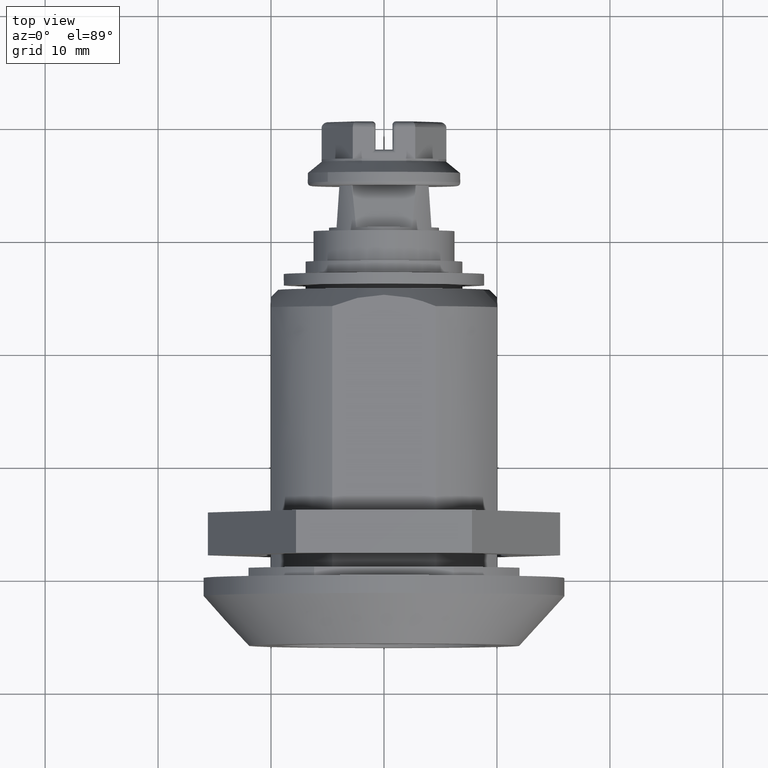
[diagram: clean part render]
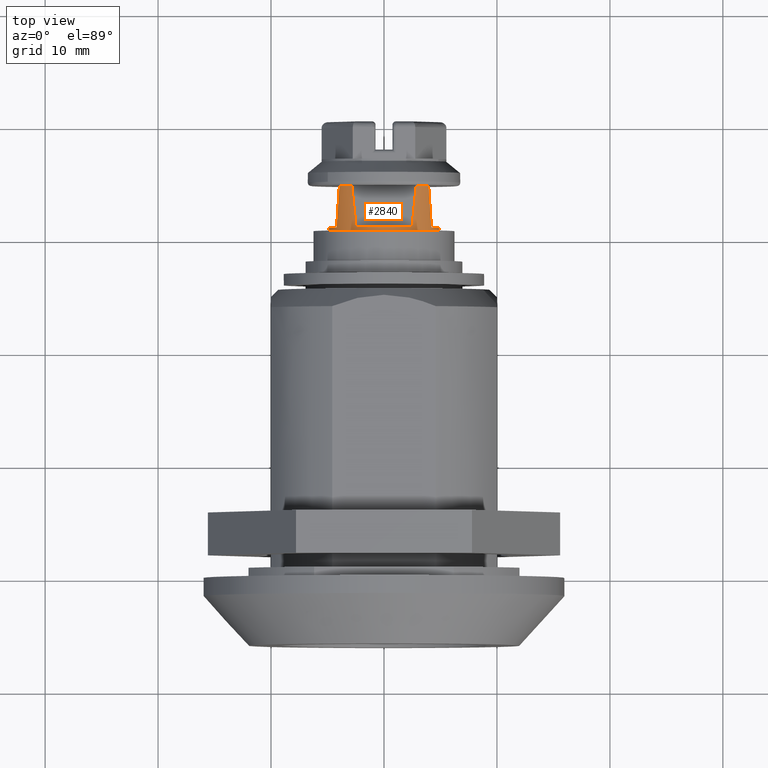
[diagram: same view with one face highlighted and labeled with its STEP entity id]
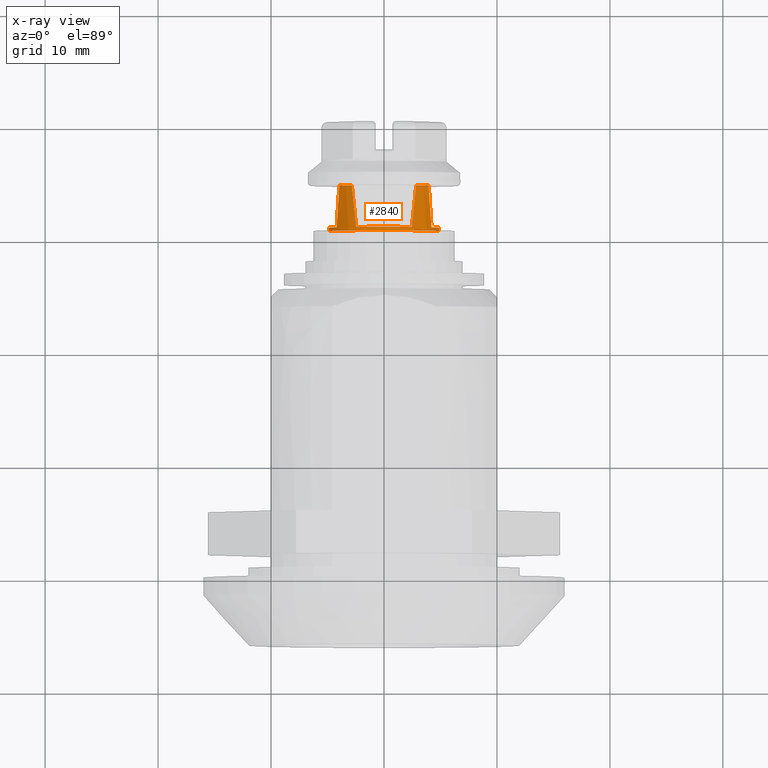
[diagram: x-ray of the same camera — body ghosted, the highlighted face saturated]
A machine part, top view. The second image highlights one B-rep face of the part: STEP entity #2840.
The next image is the same camera in x-ray: the body ghosted, the highlighted face saturated — about 0% of this face is hidden behind the body in this view.
In plain terms, the highlighted face is a freeform B-spline surface patch.
Its self-contained STEP definition (entity closure, byte-faithful):
#2448=CARTESIAN_POINT('',(4.873276285907901,30.699999999999999,-0.042519608505355));
#2449=VERTEX_POINT('',#2448);
#2463=CARTESIAN_POINT('',(1.879771E-015,30.699999999999999,4.873461090027790));
#2464=VERTEX_POINT('',#2463);
#2465=CARTESIAN_POINT('',(4.873276285907901,30.700000000000003,-0.042519608505355));
#2466=CARTESIAN_POINT('',(4.873461773852578,30.699999999999999,-0.021260211823126));
#2467=CARTESIAN_POINT('',(4.873461772357771,30.699999999999999,-5.953368E-009));
#2468=CARTESIAN_POINT('',(4.873461429704467,30.699999999999999,4.873461087064090));
#2469=CARTESIAN_POINT('',(1.879771E-015,30.699999999999999,4.873461090027790));
#2477=(BOUNDED_CURVE()B_SPLINE_CURVE(2,(#2465,#2466,#2467,#2468,#2469),.UNSPECIFIED.,.F.,.U.)B_SPLINE_CURVE_WITH_KNOTS((3,2,3),(0.748460424774428,0.750000000000000,1.0),.UNSPECIFIED.)CURVE()GEOMETRIC_REPRESENTATION_ITEM()RATIONAL_B_SPLINE_CURVE((0.996414766609952,0.998196275426307,1.0,0.707106781186548,1.0))REPRESENTATION_ITEM(''));
#2478=EDGE_CURVE('',#2449,#2464,#2477,.T.);
#2480=CARTESIAN_POINT('',(-4.873276285907897,30.699999999999999,0.042519608505356));
#2481=VERTEX_POINT('',#2480);
#2482=CARTESIAN_POINT('',(1.879771E-015,30.699999999999999,4.873461090027790));
#2483=CARTESIAN_POINT('',(-4.831125708236142,30.700000000000006,4.873461093017458));
#2484=CARTESIAN_POINT('',(-4.873276285907897,30.699999999999999,0.042519608505356));
#2492=(BOUNDED_CURVE()B_SPLINE_CURVE(2,(#2482,#2483,#2484),.UNSPECIFIED.,.F.,.U.)B_SPLINE_CURVE_WITH_KNOTS((3,3),(0.0,0.248460424774428),.UNSPECIFIED.)CURVE()GEOMETRIC_REPRESENTATION_ITEM()RATIONAL_B_SPLINE_CURVE((1.0,0.708910505760241,0.996414766609952))REPRESENTATION_ITEM(''));
#2493=EDGE_CURVE('',#2464,#2481,#2492,.T.);
#2533=CARTESIAN_POINT('',(-4.873276894191788,31.0,0.042528443163329));
#2534=VERTEX_POINT('',#2533);
#2653=CARTESIAN_POINT('',(4.873276894191791,31.0,-0.042528443163328));
#2654=VERTEX_POINT('',#2653);
#2668=CARTESIAN_POINT('',(4.873276894191791,31.0,-0.042528443163328));
#2669=CARTESIAN_POINT('',(4.873276285907901,30.699999999999999,-0.042519608505355));
#2670=QUASI_UNIFORM_CURVE('',1,(#2668,#2669),.UNSPECIFIED.,.F.,.U.);
#2671=EDGE_CURVE('',#2654,#2449,#2670,.T.);
#2675=CARTESIAN_POINT('',(-4.873276894191788,31.0,0.042528443163329));
#2676=CARTESIAN_POINT('',(-4.873276285907897,30.699999999999999,0.042519608505356));
#2677=QUASI_UNIFORM_CURVE('',1,(#2675,#2676),.UNSPECIFIED.,.F.,.U.);
#2678=EDGE_CURVE('',#2534,#2481,#2677,.T.);
#2683=CARTESIAN_POINT('',(4.873276894191791,34.800000000000011,-0.042528443163371));
#2684=CARTESIAN_POINT('',(4.915805337355162,34.800000000000004,4.830748451028418));
#2685=CARTESIAN_POINT('',(0.042528443163373,34.800000000000011,4.873276894191789));
#2686=CARTESIAN_POINT('',(-4.830748451028416,34.800000000000004,4.915805337355159));
#2687=CARTESIAN_POINT('',(-4.873276894191787,34.800000000000011,0.042528443163371));
#2688=CARTESIAN_POINT('',(4.873276894191791,30.597500000000000,-0.042528443163371));
#2689=CARTESIAN_POINT('',(4.915805337355162,30.597500000000004,4.830748451028418));
#2690=CARTESIAN_POINT('',(0.042528443163372,30.597500000000000,4.873276894191789));
#2691=CARTESIAN_POINT('',(-4.830748451028416,30.597500000000004,4.915805337355159));
#2692=CARTESIAN_POINT('',(-4.873276894191787,30.597500000000000,0.042528443163371));
#2700=(BOUNDED_SURFACE()B_SPLINE_SURFACE(2,1,((#2683,#2688),(#2684,#2689),(#2685,#2690),(#2686,#2691),(#2687,#2692)),.UNSPECIFIED.,.F.,.F.,.U.)B_SPLINE_SURFACE_WITH_KNOTS((3,2,3),(2,2),(0.0,8.074616987767579,16.149233975535161),(0.0,4.202500000000011),.UNSPECIFIED.)GEOMETRIC_REPRESENTATION_ITEM()RATIONAL_B_SPLINE_SURFACE(((1.0,1.0),(0.707106781186548,0.707106781186548),(1.0,1.0),(0.707106781186548,0.707106781186548),(1.0,1.0)))REPRESENTATION_ITEM('')SURFACE());
#2701=CARTESIAN_POINT('',(-4.199999999999998,31.0,2.471970136539200));
#2702=VERTEX_POINT('',#2701);
#2703=CARTESIAN_POINT('',(-4.873276894191788,31.000000000000004,0.042528443163288));
#2704=CARTESIAN_POINT('',(-4.861889566969206,30.999999999999996,1.347386898182320));
#2705=CARTESIAN_POINT('',(-4.199999999999985,31.0,2.471970136539192));
#2713=(BOUNDED_CURVE()B_SPLINE_CURVE(2,(#2703,#2704,#2705),.UNSPECIFIED.,.F.,.U.)B_SPLINE_CURVE_WITH_KNOTS((3,3),(0.508007924385747,1.0),.UNSPECIFIED.)CURVE()GEOMETRIC_REPRESENTATION_ITEM()RATIONAL_B_SPLINE_CURVE((0.930922858437447,0.932011747999721,1.0))REPRESENTATION_ITEM(''));
#2714=EDGE_CURVE('',#2534,#2702,#2713,.T.);
#2715=ORIENTED_EDGE('',*,*,#2714,.F.);
#2716=ORIENTED_EDGE('',*,*,#2678,.T.);
#2717=ORIENTED_EDGE('',*,*,#2493,.F.);
#2718=ORIENTED_EDGE('',*,*,#2478,.F.);
#2719=ORIENTED_EDGE('',*,*,#2671,.F.);
#2720=CARTESIAN_POINT('',(4.200000000000002,31.0,2.471970136539125));
#2721=VERTEX_POINT('',#2720);
#2722=CARTESIAN_POINT('',(4.873276894191793,31.0,-0.042528443163286));
#2723=CARTESIAN_POINT('',(4.885062901736596,31.000000000000004,1.308014251812338));
#2724=CARTESIAN_POINT('',(4.200000000000022,31.0,2.471970136539134));
#2732=(BOUNDED_CURVE()B_SPLINE_CURVE(2,(#2722,#2723,#2724),.UNSPECIFIED.,.F.,.U.)B_SPLINE_CURVE_WITH_KNOTS((3,3),(0.491992075614253,1.0),.UNSPECIFIED.)CURVE()GEOMETRIC_REPRESENTATION_ITEM()RATIONAL_B_SPLINE_CURVE((0.930922858437450,0.929798522185233,1.0))REPRESENTATION_ITEM(''));
#2733=EDGE_CURVE('',#2654,#2721,#2732,.T.);
#2734=ORIENTED_EDGE('',*,*,#2733,.T.);
#2735=CARTESIAN_POINT('',(3.949999774227186,34.700000000000003,2.854494375412740));
#2736=VERTEX_POINT('',#2735);
#2737=CARTESIAN_POINT('',(4.200000000000002,31.0,2.471970136539125));
#2738=CARTESIAN_POINT('',(4.083976868549138,32.717140794737915,2.669099197615015));
#2739=CARTESIAN_POINT('',(3.949999774227186,34.700000000000003,2.854494375412740));
#2747=(BOUNDED_CURVE()B_SPLINE_CURVE(2,(#2737,#2738,#2739),.UNSPECIFIED.,.F.,.U.)CURVE()GEOMETRIC_REPRESENTATION_ITEM()QUASI_UNIFORM_CURVE()RATIONAL_B_SPLINE_CURVE((1.0,0.998900346375237,1.0))REPRESENTATION_ITEM(''));
#2748=EDGE_CURVE('',#2721,#2736,#2747,.T.);
#2749=ORIENTED_EDGE('',*,*,#2748,.T.);
#2750=CARTESIAN_POINT('',(2.854494375462508,34.700000000000003,3.949999774227140));
#2751=VERTEX_POINT('',#2750);
#2752=CARTESIAN_POINT('',(3.949999774227186,34.700000000000003,2.854494375412740));
#2753=CARTESIAN_POINT('',(3.490433822450970,34.700000000000003,3.490433822425335));
#2754=CARTESIAN_POINT('',(2.854494375462508,34.700000000000003,3.949999774227140));
#2762=(BOUNDED_CURVE()B_SPLINE_CURVE(2,(#2752,#2753,#2754),.UNSPECIFIED.,.F.,.U.)CURVE()GEOMETRIC_REPRESENTATION_ITEM()QUASI_UNIFORM_CURVE()RATIONAL_B_SPLINE_CURVE((1.0,0.987286553364848,1.0))REPRESENTATION_ITEM(''));
#2763=EDGE_CURVE('',#2736,#2751,#2762,.T.);
#2764=ORIENTED_EDGE('',*,*,#2763,.T.);
#2765=CARTESIAN_POINT('',(2.471970136539202,31.0,4.200000000000000));
#2766=VERTEX_POINT('',#2765);
#2767=CARTESIAN_POINT('',(2.471970136539190,30.999999999999989,4.199999999999992));
#2768=CARTESIAN_POINT('',(2.669099197641561,32.717140794721587,4.083976868550213));
#2769=CARTESIAN_POINT('',(2.854494375462507,34.700000000000003,3.949999774227136));
#2777=(BOUNDED_CURVE()B_SPLINE_CURVE(2,(#2767,#2768,#2769),.UNSPECIFIED.,.F.,.U.)CURVE()GEOMETRIC_REPRESENTATION_ITEM()QUASI_UNIFORM_CURVE()RATIONAL_B_SPLINE_CURVE((1.0,0.998900346374841,1.0))REPRESENTATION_ITEM(''));
#2778=EDGE_CURVE('',#2766,#2751,#2777,.T.);
#2779=ORIENTED_EDGE('',*,*,#2778,.F.);
#2780=CARTESIAN_POINT('',(-2.471970136539198,31.0,4.200000000000000));
#2781=VERTEX_POINT('',#2780);
#2782=CARTESIAN_POINT('',(-2.471970136539191,31.0,4.199999999999986));
#2783=CARTESIAN_POINT('',(1.464459E-015,31.000000000000004,5.654913418081321));
#2784=CARTESIAN_POINT('',(2.471970136539193,31.0,4.199999999999987));
#2792=(BOUNDED_CURVE()B_SPLINE_CURVE(2,(#2782,#2783,#2784),.UNSPECIFIED.,.F.,.U.)CURVE()GEOMETRIC_REPRESENTATION_ITEM()QUASI_UNIFORM_CURVE()RATIONAL_B_SPLINE_CURVE((1.0,0.861810270184951,1.0))REPRESENTATION_ITEM(''));
#2793=EDGE_CURVE('',#2781,#2766,#2792,.T.);
#2794=ORIENTED_EDGE('',*,*,#2793,.F.);
#2795=CARTESIAN_POINT('',(-2.854494375462503,34.700000000000003,3.949999774227140));
#2796=VERTEX_POINT('',#2795);
#2797=CARTESIAN_POINT('',(-2.854494375462503,34.700000000000003,3.949999774227136));
#2798=CARTESIAN_POINT('',(-2.669099197641565,32.717140794721693,4.083976868550207));
#2799=CARTESIAN_POINT('',(-2.471970136539201,31.000000000000121,4.199999999999982));
#2807=(BOUNDED_CURVE()B_SPLINE_CURVE(2,(#2797,#2798,#2799),.UNSPECIFIED.,.F.,.U.)CURVE()GEOMETRIC_REPRESENTATION_ITEM()QUASI_UNIFORM_CURVE()RATIONAL_B_SPLINE_CURVE((1.0,0.998900346374939,1.0))REPRESENTATION_ITEM(''));
#2808=EDGE_CURVE('',#2796,#2781,#2807,.T.);
#2809=ORIENTED_EDGE('',*,*,#2808,.F.);
#2810=CARTESIAN_POINT('',(-3.949999774227138,34.700000000000003,2.854494375441165));
#2811=VERTEX_POINT('',#2810);
#2812=CARTESIAN_POINT('',(-2.854494375462503,34.700000000000003,3.949999774227140));
#2813=CARTESIAN_POINT('',(-3.490433822448109,34.700000000000003,3.490433822437129));
#2814=CARTESIAN_POINT('',(-3.949999774227138,34.700000000000003,2.854494375441165));
#2822=(BOUNDED_CURVE()B_SPLINE_CURVE(2,(#2812,#2813,#2814),.UNSPECIFIED.,.F.,.U.)CURVE()GEOMETRIC_REPRESENTATION_ITEM()QUASI_UNIFORM_CURVE()RATIONAL_B_SPLINE_CURVE((1.0,0.987286553365224,1.0))REPRESENTATION_ITEM(''));
#2823=EDGE_CURVE('',#2796,#2811,#2822,.T.);
#2824=ORIENTED_EDGE('',*,*,#2823,.T.);
#2825=CARTESIAN_POINT('',(-4.199999999999998,31.0,2.471970136539200));
#2826=CARTESIAN_POINT('',(-4.083976868549744,32.717140794728607,2.669099197630195));
#2827=CARTESIAN_POINT('',(-3.949999774227138,34.700000000000003,2.854494375441165));
#2835=(BOUNDED_CURVE()B_SPLINE_CURVE(2,(#2825,#2826,#2827),.UNSPECIFIED.,.F.,.U.)CURVE()GEOMETRIC_REPRESENTATION_ITEM()QUASI_UNIFORM_CURVE()RATIONAL_B_SPLINE_CURVE((1.0,0.998900346375045,1.0))REPRESENTATION_ITEM(''));
#2836=EDGE_CURVE('',#2702,#2811,#2835,.T.);
#2837=ORIENTED_EDGE('',*,*,#2836,.F.);
#2838=EDGE_LOOP('',(#2715,#2716,#2717,#2718,#2719,#2734,#2749,#2764,#2779,#2794,#2809,#2824,#2837));
#2839=FACE_OUTER_BOUND('',#2838,.T.);
#2840=ADVANCED_FACE('',(#2839),#2700,.T.);